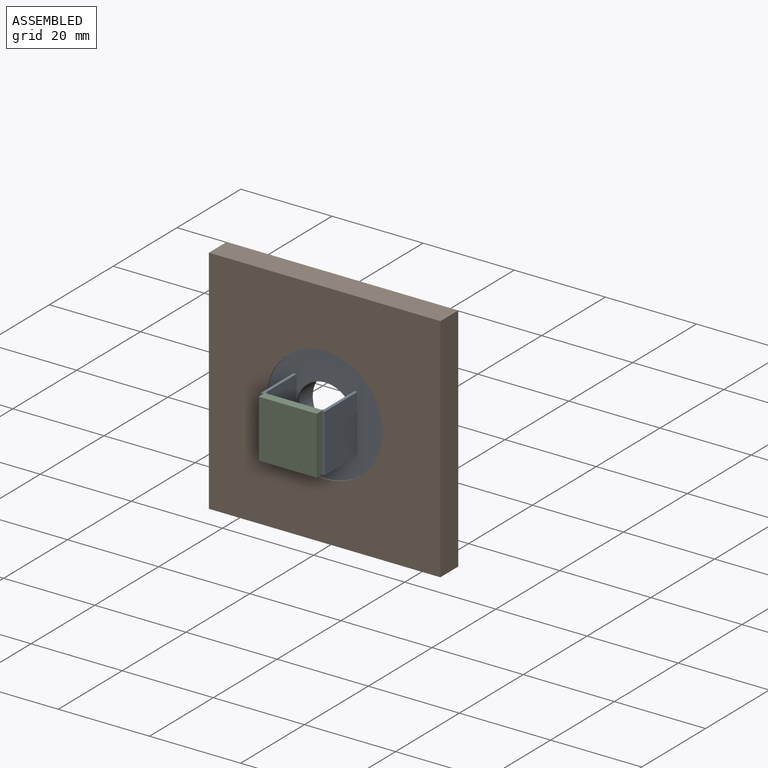
[diagram: assembled view]
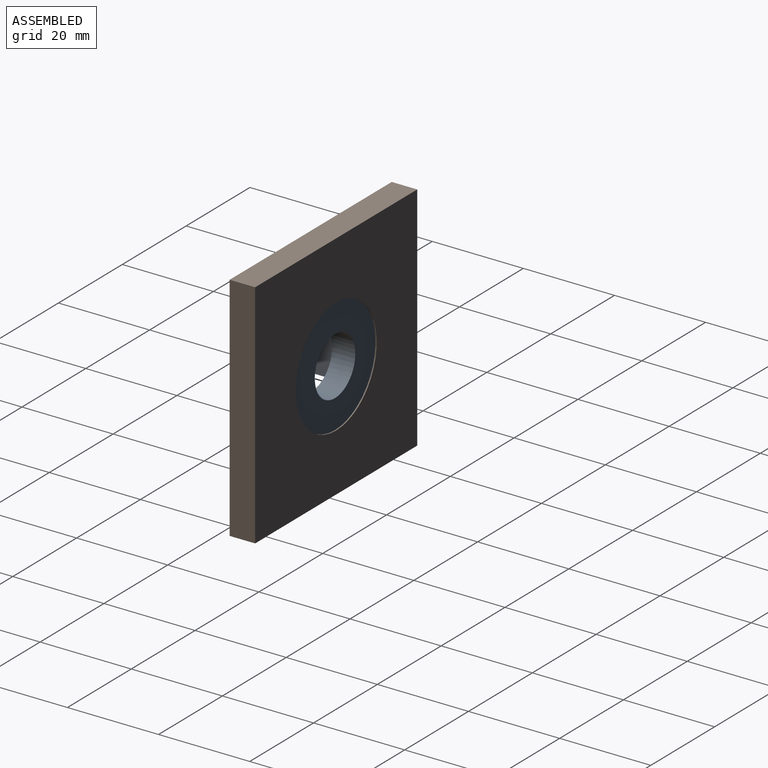
[diagram: assembled view, second angle]
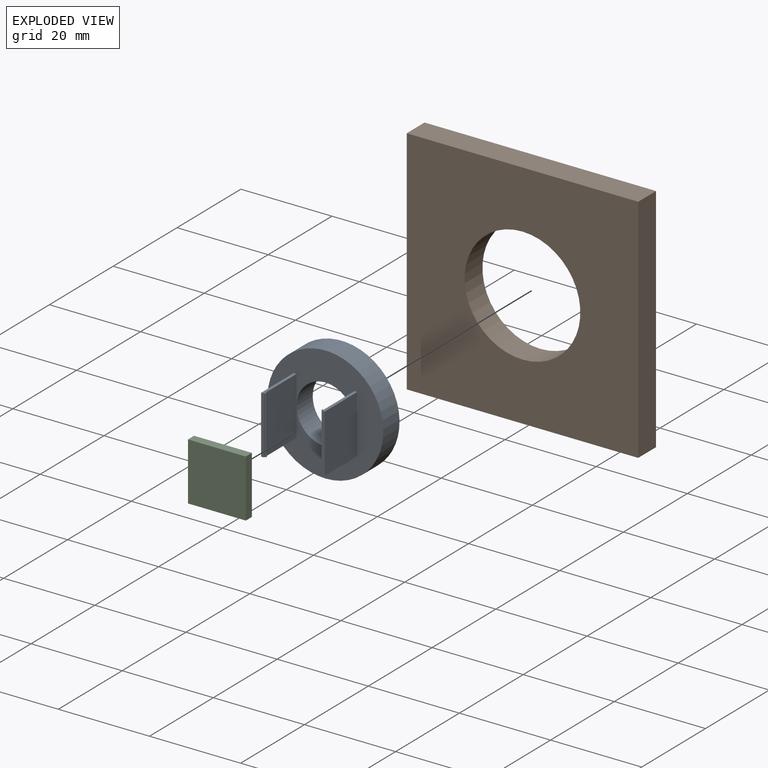
[diagram: exploded view]
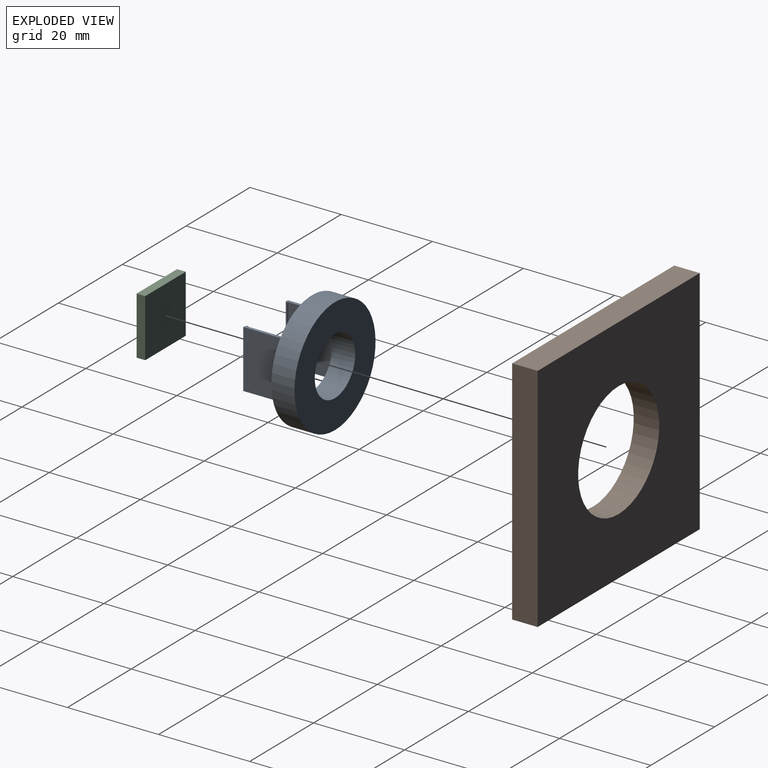
[diagram: exploded view, second angle]
ASSEMBLY  parts=3 mates=3
PART A: 22 faces, bbox 25.4x15.2x25.4 mm
  f0: plane 12.68x0.25mm, normal (-1,0,0), area 3.2mm2, adj f8,f10,f11,f20
  f1: plane 12.68x0.25mm, normal (1,0,0), area 3.2mm2, adj f12,f14,f15,f16
  f2: plane 12.68x9.65mm, normal (1,0,0), area 122.4mm2, adj f3,f12,f14,f17
  f3: plane 25.4x25.4mm, normal (0,-1,0), area 363.9mm2, adj f2,f4,f5,f7,f8,f9,f10,f12
  f4: cylinder r=12.7mm len=25.4mm, axis (0,1,0), area 405.4mm2, adj f3,f6
  f5: cylinder r=6.35mm len=12.7mm, axis (0,1,0), area 202.7mm2, adj f3,f6
  f6: plane 25.4x25.4mm, normal (0,1,0), area 380mm2, adj f4,f5
  f7: plane 12.68x9.65mm, normal (-1,0,0), area 122.4mm2, adj f3,f8,f10,f19
  f8: plane 10.16x0.89mm, normal (0,0,-1), area 6.5mm2, adj f0,f3,f7,f9,f11,f19,f20,f21
  f9: plane 12.68x10.16mm, normal (1,0,0), area 128.8mm2, adj f3,f8,f10,f11
  f10: plane 10.16x0.89mm, normal (0,0,1), area 6.5mm2, adj f0,f3,f7,f9,f11,f19,f20,f21
  f11: plane 12.68x0.64mm, normal (0,-1,0), area 8.1mm2, adj f0,f8,f9,f10
  f12: plane 10.16x0.89mm, normal (0,0,1), area 6.5mm2, adj f1,f2,f3,f13,f15,f16,f17,f18
  f13: plane 12.68x10.16mm, normal (-1,0,0), area 128.8mm2, adj f3,f12,f14,f15
  f14: plane 10.16x0.89mm, normal (0,0,-1), area 6.5mm2, adj f1,f2,f3,f13,f15,f16,f17,f18
  f15: plane 12.68x0.64mm, normal (0,-1,0), area 8.1mm2, adj f1,f12,f13,f14
  f16: plane 12.68x0.25mm, normal (0,-1,0), area 3.2mm2, adj f1,f12,f14,f18
  f17: plane 12.68x0.25mm, normal (0,1,0), area 3.2mm2, adj f2,f12,f14,f18
  f18: plane 12.68x0.25mm, normal (1,0,0), area 3.2mm2, adj f12,f14,f16,f17
  f19: plane 12.68x0.25mm, normal (0,1,0), area 3.2mm2, adj f7,f8,f10,f21
  f20: plane 12.68x0.25mm, normal (0,-1,0), area 3.2mm2, adj f0,f8,f10,f21
  f21: plane 12.68x0.25mm, normal (-1,0,0), area 3.2mm2, adj f8,f10,f19,f20
PART B: 7 faces, bbox 50.8x5.6x50.8 mm
  f0: plane 50.8x5.59mm, normal (1,0,0), area 283.9mm2, adj f1,f3,f5,f6
  f1: plane 50.8x5.59mm, normal (0,0,1), area 283.9mm2, adj f0,f2,f5,f6
  f2: plane 50.8x5.59mm, normal (-1,0,0), area 283.9mm2, adj f1,f3,f5,f6
  f3: plane 50.8x5.59mm, normal (0,0,-1), area 283.9mm2, adj f0,f2,f5,f6
  f4: cylinder r=12.7mm len=25.4mm, axis (0,1,0), area 445.9mm2, adj f5,f6
  f5: plane 50.8x50.8mm, normal (0,-1,0), area 2073.9mm2, adj f0,f1,f2,f3,f4
  f6: plane 50.8x50.8mm, normal (0,1,0), area 2073.9mm2, adj f0,f1,f2,f3,f4
PART C: 6 faces, bbox 12.7x1.9x12.7 mm
  f0: plane 12.7x1.91mm, normal (1,0,0), area 24.2mm2, adj f1,f3,f4,f5
  f1: plane 12.7x1.91mm, normal (0,0,1), area 24.2mm2, adj f0,f2,f4,f5
  f2: plane 12.7x1.91mm, normal (-1,0,0), area 24.2mm2, adj f1,f3,f4,f5
  f3: plane 12.7x1.91mm, normal (0,0,-1), area 24.2mm2, adj f0,f2,f4,f5
  f4: plane 12.7x12.7mm, normal (0,-1,0), area 161.3mm2, adj f0,f1,f2,f3
  f5: plane 12.7x12.7mm, normal (0,1,0), area 161.3mm2, adj f0,f1,f2,f3
PLACE A t=(0.04,8.73,-0.08)mm
PLACE B t=(0.04,8.99,-0.08)mm
PLACE C t=(0.04,-6.25,-0.08)mm
MATE parallel C.f2 <-> A.f1  axis (-1,0,0) through (-6.31,-6.25,-0.08)mm
MATE parallel C.f5 <-> A.f20  axis (0,1,0) through (0.04,-6.25,-0.08)mm
MATE planar B.f4 <-> A.f4  axis (0,1,0) through (0.04,6.19,-0.08)mm
